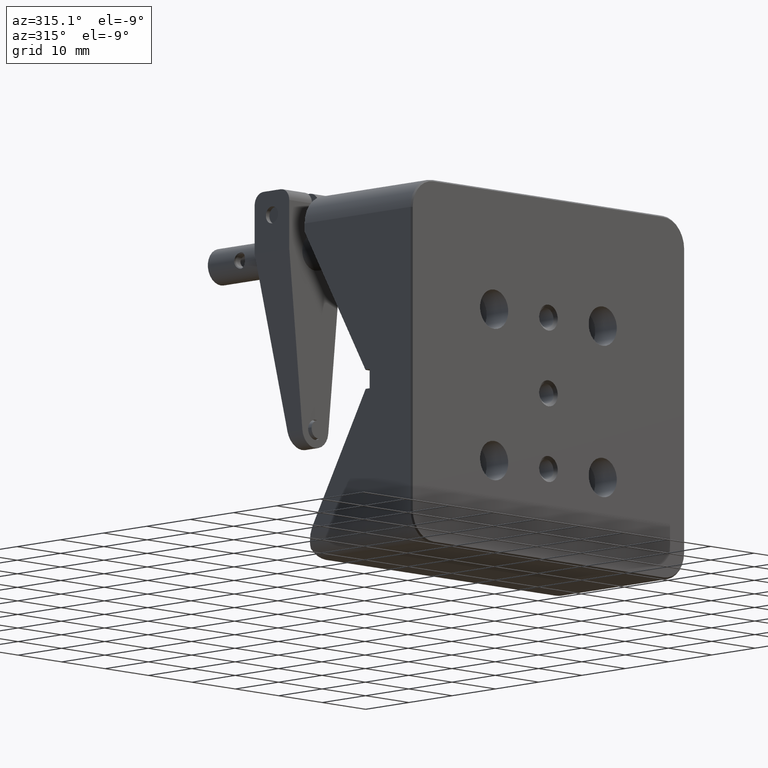
[diagram: clean part render]
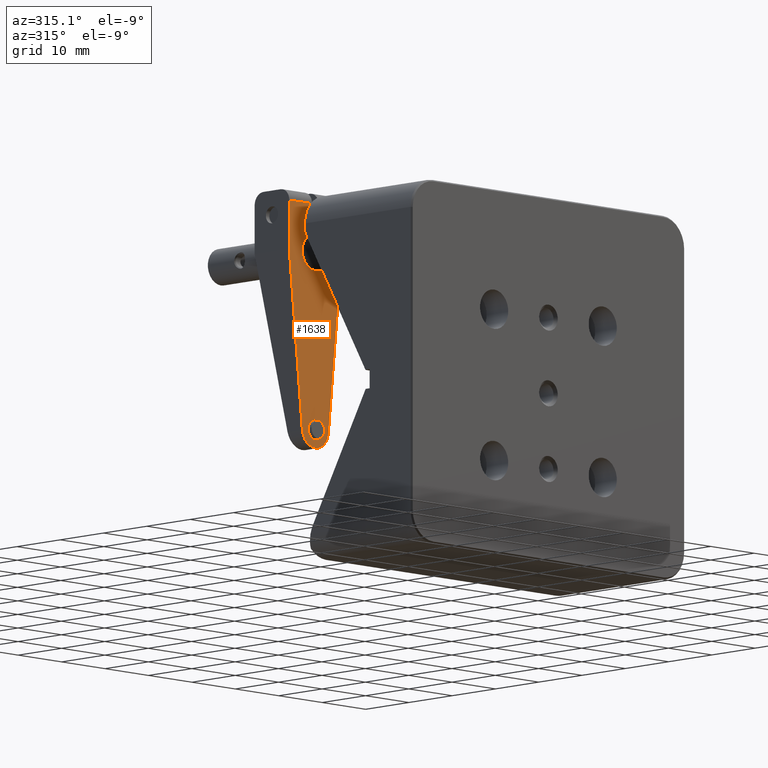
[diagram: same view with one face highlighted and labeled with its STEP entity id]
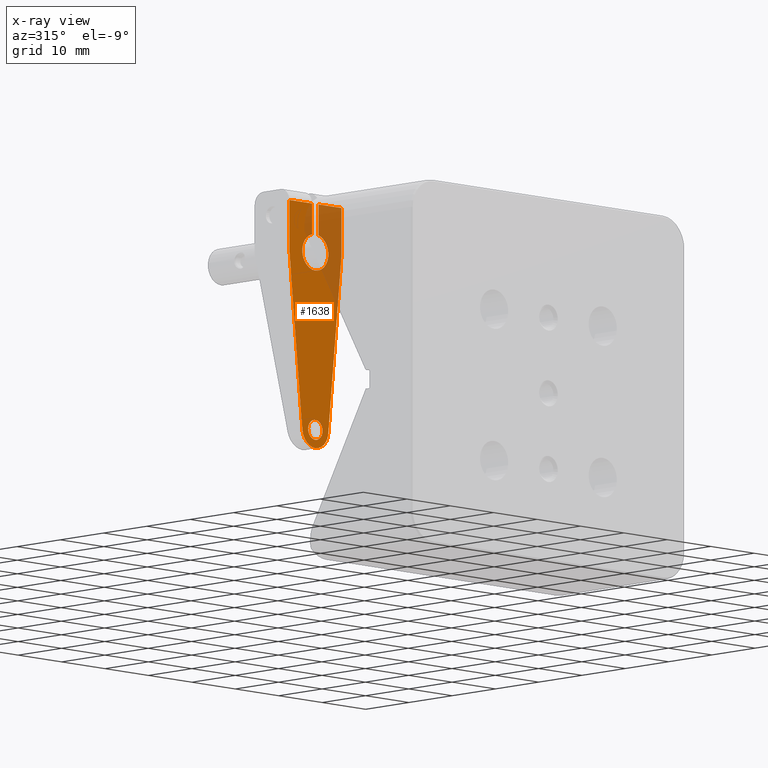
[diagram: x-ray of the same camera — body ghosted, the highlighted face saturated]
A machine part, auxiliary view. The second image highlights one B-rep face of the part: STEP entity #1638.
The next image is the same camera in x-ray: the body ghosted, the highlighted face saturated — about 20% of this face is hidden behind the body in this view.
In plain terms, the highlighted planar face has unit normal (-0, 1, 0).
Its self-contained STEP definition (entity closure, byte-faithful):
#220 = CARTESIAN_POINT ( 'NONE',  ( -3.358424649491098535E-15, 41.37046049776490264, 35.00000000000000711 ) ) ;
#285 = VERTEX_POINT ( 'NONE', #7710 ) ;
#341 = AXIS2_PLACEMENT_3D ( 'NONE', #7128, #8691, #2700 ) ;
#346 = ORIENTED_EDGE ( 'NONE', *, *, #5312, .T. ) ;
#349 = ORIENTED_EDGE ( 'NONE', *, *, #849, .F. ) ;
#446 = CARTESIAN_POINT ( 'NONE',  ( -3.876066134722577930E-15, 41.37046049776490975, -2.299999999999996270 ) ) ;
#849 = EDGE_CURVE ( 'NONE', #6032, #5906, #4950, .T. ) ;
#934 = CARTESIAN_POINT ( 'NONE',  ( 6.000000000000000000, 41.37046049776490264, 27.00000000000001066 ) ) ;
#1307 = VECTOR ( 'NONE', #2316, 1000.000000000000000 ) ;
#1600 = VERTEX_POINT ( 'NONE', #4281 ) ;
#1634 = EDGE_CURVE ( 'NONE', #3156, #1600, #2367, .T. ) ;
#1636 = ORIENTED_EDGE ( 'NONE', *, *, #2875, .F. ) ;
#1638 = ADVANCED_FACE ( 'NONE', ( #9253, #9606 ), #6653, .F. ) ;
#1713 = VERTEX_POINT ( 'NONE', #2133 ) ;
#1739 = VERTEX_POINT ( 'NONE', #2164 ) ;
#1750 = ORIENTED_EDGE ( 'NONE', *, *, #3308, .F. ) ;
#1789 = AXIS2_PLACEMENT_3D ( 'NONE', #446, #4289, #5822 ) ;
#1934 = EDGE_CURVE ( 'NONE', #1713, #7161, #5272, .T. ) ;
#2133 = CARTESIAN_POINT ( 'NONE',  ( -0.7500000000000036637, 41.37046049776490264, 35.00000000000000711 ) ) ;
#2164 = CARTESIAN_POINT ( 'NONE',  ( 5.999999999999999112, 41.37046049776490264, 35.00000000000000711 ) ) ;
#2193 = CIRCLE ( 'NONE', #341, 3.000000000000001332 ) ;
#2287 = AXIS2_PLACEMENT_3D ( 'NONE', #9012, #8378, #6031 ) ;
#2316 = DIRECTION ( 'NONE',  ( -1.000000000000000000, -1.787893627723958978E-17, 1.387778780781445367E-17 ) ) ;
#2367 = LINE ( 'NONE', #4933, #4148 ) ;
#2422 = ORIENTED_EDGE ( 'NONE', *, *, #3150, .F. ) ;
#2643 = ORIENTED_EDGE ( 'NONE', *, *, #3365, .F. ) ;
#2658 = CARTESIAN_POINT ( 'NONE',  ( -6.000000000000006217, 41.37046049776490264, 37.00000000000001421 ) ) ;
#2700 = DIRECTION ( 'NONE',  ( -1.000000000000000000, 0.0000000000000000000, 0.0000000000000000000 ) ) ;
#2725 = CARTESIAN_POINT ( 'NONE',  ( -2.984557093065577593, 41.37046049776490975, -2.604004865474175201 ) ) ;
#2809 = CARTESIAN_POINT ( 'NONE',  ( -3.358424649491098535E-15, 41.37046049776490264, 35.00000000000000711 ) ) ;
#2875 = EDGE_CURVE ( 'NONE', #1739, #3156, #6060, .T. ) ;
#2881 = VECTOR ( 'NONE', #5058, 1000.000000000000000 ) ;
#3015 = ORIENTED_EDGE ( 'NONE', *, *, #1634, .F. ) ;
#3084 = ORIENTED_EDGE ( 'NONE', *, *, #5636, .T. ) ;
#3129 = VERTEX_POINT ( 'NONE', #8109 ) ;
#3150 = EDGE_CURVE ( 'NONE', #9432, #7868, #5352, .T. ) ;
#3156 = VERTEX_POINT ( 'NONE', #7504 ) ;
#3209 = LINE ( 'NONE', #2809, #8198 ) ;
#3224 = ORIENTED_EDGE ( 'NONE', *, *, #9637, .T. ) ;
#3257 = VECTOR ( 'NONE', #5988, 1000.000000000000000 ) ;
#3272 = CARTESIAN_POINT ( 'NONE',  ( 1.649999999999988365, 41.37046049776490975, -2.299999999999996270 ) ) ;
#3308 = EDGE_CURVE ( 'NONE', #7868, #9432, #5998, .T. ) ;
#3311 = AXIS2_PLACEMENT_3D ( 'NONE', #9621, #5014, #6565 ) ;
#3365 = EDGE_CURVE ( 'NONE', #1600, #6032, #9043, .T. ) ;
#3385 = VERTEX_POINT ( 'NONE', #6473 ) ;
#3415 = ORIENTED_EDGE ( 'NONE', *, *, #1934, .T. ) ;
#3528 = CARTESIAN_POINT ( 'NONE',  ( -2.984557093065577593, 41.37046049776490975, -2.604004865474175201 ) ) ;
#3602 = DIRECTION ( 'NONE',  ( -1.000000000000000000, -1.787893627723958978E-17, 1.387778780781445367E-17 ) ) ;
#3613 = AXIS2_PLACEMENT_3D ( 'NONE', #5950, #8953, #7418 ) ;
#3866 = EDGE_LOOP ( 'NONE', ( #3084, #3415, #8288, #349, #2643, #3015, #1636, #3224, #7042, #346 ) ) ;
#4148 = VECTOR ( 'NONE', #6493, 1000.000000000000000 ) ;
#4281 = CARTESIAN_POINT ( 'NONE',  ( 2.984557093065569600, 41.37046049776490975, -2.604004865474175201 ) ) ;
#4289 = DIRECTION ( 'NONE',  ( 1.787893627723958978E-17, -1.000000000000000000, -2.460847057598100059E-16 ) ) ;
#4780 = CARTESIAN_POINT ( 'NONE',  ( -1.649999999999995914, 41.37046049776490975, -2.299999999999995826 ) ) ;
#4933 = CARTESIAN_POINT ( 'NONE',  ( 2.984557093065569600, 41.37046049776490975, -2.604004865474175201 ) ) ;
#4950 = LINE ( 'NONE', #3528, #2881 ) ;
#4981 = CARTESIAN_POINT ( 'NONE',  ( -6.000000000000006217, 41.37046049776490264, 35.00000000000000711 ) ) ;
#5014 = DIRECTION ( 'NONE',  ( -1.787893627723958978E-17, 1.000000000000000000, 2.460847057598100059E-16 ) ) ;
#5051 = EDGE_CURVE ( 'NONE', #285, #3385, #8033, .T. ) ;
#5058 = DIRECTION ( 'NONE',  ( -0.1013349551580597085, -2.466297125627261552E-16, 0.9948523643551911988 ) ) ;
#5199 = CARTESIAN_POINT ( 'NONE',  ( -0.7500000000000037748, 41.37046049776490264, 28.06215132687502845 ) ) ;
#5272 = LINE ( 'NONE', #220, #1307 ) ;
#5312 = EDGE_CURVE ( 'NONE', #3385, #3129, #2193, .T. ) ;
#5352 = CIRCLE ( 'NONE', #2287, 1.649999999999992140 ) ;
#5580 = VECTOR ( 'NONE', #7435, 1000.000000000000000 ) ;
#5636 = EDGE_CURVE ( 'NONE', #3129, #1713, #6612, .T. ) ;
#5822 = DIRECTION ( 'NONE',  ( 1.000000000000000000, 0.0000000000000000000, 0.0000000000000000000 ) ) ;
#5898 = CARTESIAN_POINT ( 'NONE',  ( 0.7499999999999966693, 41.37046049776490264, 28.06215132687502845 ) ) ;
#5906 = VERTEX_POINT ( 'NONE', #7053 ) ;
#5950 = CARTESIAN_POINT ( 'NONE',  ( -3.876066134722577930E-15, 41.37046049776490975, -2.299999999999996270 ) ) ;
#5988 = DIRECTION ( 'NONE',  ( 1.387778780781445367E-17, -2.460847057598097594E-16, 1.000000000000000000 ) ) ;
#5998 = CIRCLE ( 'NONE', #1789, 1.649999999999992140 ) ;
#6031 = DIRECTION ( 'NONE',  ( 1.000000000000000000, 0.0000000000000000000, 0.0000000000000000000 ) ) ;
#6032 = VERTEX_POINT ( 'NONE', #2725 ) ;
#6060 = LINE ( 'NONE', #934, #7786 ) ;
#6473 = CARTESIAN_POINT ( 'NONE',  ( 0.7499999999999966693, 41.37046049776490264, 29.90473750965557542 ) ) ;
#6493 = DIRECTION ( 'NONE',  ( -0.1013349551580597363, 2.430061901508704115E-16, -0.9948523643551911988 ) ) ;
#6565 = DIRECTION ( 'NONE',  ( -1.000000000000000000, 0.0000000000000000000, 0.0000000000000000000 ) ) ;
#6612 = LINE ( 'NONE', #5199, #3257 ) ;
#6653 = PLANE ( 'NONE',  #3613 ) ;
#6900 = EDGE_LOOP ( 'NONE', ( #1750, #2422 ) ) ;
#7042 = ORIENTED_EDGE ( 'NONE', *, *, #5051, .T. ) ;
#7053 = CARTESIAN_POINT ( 'NONE',  ( -6.000000000000007105, 41.37046049776490264, 27.00000000000001066 ) ) ;
#7128 = CARTESIAN_POINT ( 'NONE',  ( -3.469446951953614189E-15, 41.37046049776490264, 27.00000000000001066 ) ) ;
#7161 = VERTEX_POINT ( 'NONE', #4981 ) ;
#7306 = VECTOR ( 'NONE', #8780, 1000.000000000000000 ) ;
#7418 = DIRECTION ( 'NONE',  ( -1.000000000000000000, -1.787893627723958978E-17, 1.387778780781445367E-17 ) ) ;
#7435 = DIRECTION ( 'NONE',  ( -1.387778780781445367E-17, 2.460847057598097594E-16, -1.000000000000000000 ) ) ;
#7504 = CARTESIAN_POINT ( 'NONE',  ( 6.000000000000000000, 41.37046049776490264, 27.00000000000001066 ) ) ;
#7710 = CARTESIAN_POINT ( 'NONE',  ( 0.7499999999999967804, 41.37046049776490264, 35.00000000000000711 ) ) ;
#7786 = VECTOR ( 'NONE', #9208, 1000.000000000000000 ) ;
#7868 = VERTEX_POINT ( 'NONE', #3272 ) ;
#8033 = LINE ( 'NONE', #5898, #5580 ) ;
#8109 = CARTESIAN_POINT ( 'NONE',  ( -0.7500000000000037748, 41.37046049776490264, 29.90473750965557542 ) ) ;
#8116 = EDGE_CURVE ( 'NONE', #5906, #7161, #9441, .T. ) ;
#8198 = VECTOR ( 'NONE', #3602, 1000.000000000000000 ) ;
#8288 = ORIENTED_EDGE ( 'NONE', *, *, #8116, .F. ) ;
#8378 = DIRECTION ( 'NONE',  ( 1.787893627723958978E-17, -1.000000000000000000, -2.460847057598100059E-16 ) ) ;
#8691 = DIRECTION ( 'NONE',  ( -1.787893627723958978E-17, 1.000000000000000000, 2.460847057598100059E-16 ) ) ;
#8780 = DIRECTION ( 'NONE',  ( 1.006139616066548115E-16, -2.460847057598097594E-16, 1.000000000000000000 ) ) ;
#8953 = DIRECTION ( 'NONE',  ( -1.787893627723958670E-17, 1.000000000000000000, 2.460847057598100059E-16 ) ) ;
#9012 = CARTESIAN_POINT ( 'NONE',  ( -3.876066134722577930E-15, 41.37046049776490975, -2.299999999999996270 ) ) ;
#9043 = CIRCLE ( 'NONE', #3311, 3.000000000000000000 ) ;
#9208 = DIRECTION ( 'NONE',  ( 7.285838599102591029E-17, 2.460847057598097594E-16, -1.000000000000000000 ) ) ;
#9253 = FACE_BOUND ( 'NONE', #6900, .T. ) ;
#9432 = VERTEX_POINT ( 'NONE', #4780 ) ;
#9441 = LINE ( 'NONE', #2658, #7306 ) ;
#9606 = FACE_OUTER_BOUND ( 'NONE', #3866, .T. ) ;
#9621 = CARTESIAN_POINT ( 'NONE',  ( -3.876066134722577930E-15, 41.37046049776490975, -2.299999999999996270 ) ) ;
#9637 = EDGE_CURVE ( 'NONE', #1739, #285, #3209, .T. ) ;